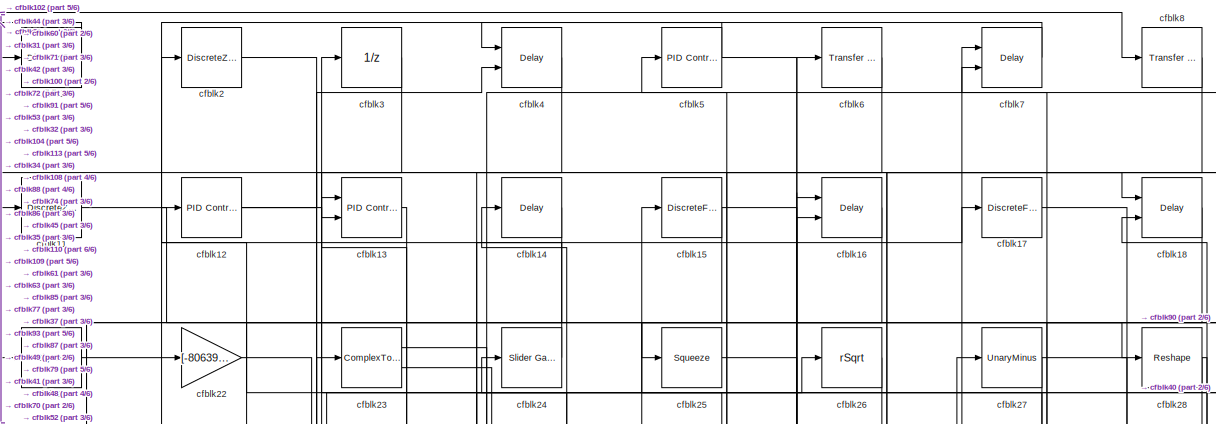
[diagram: root canvas - part 1/6, full width, top band]
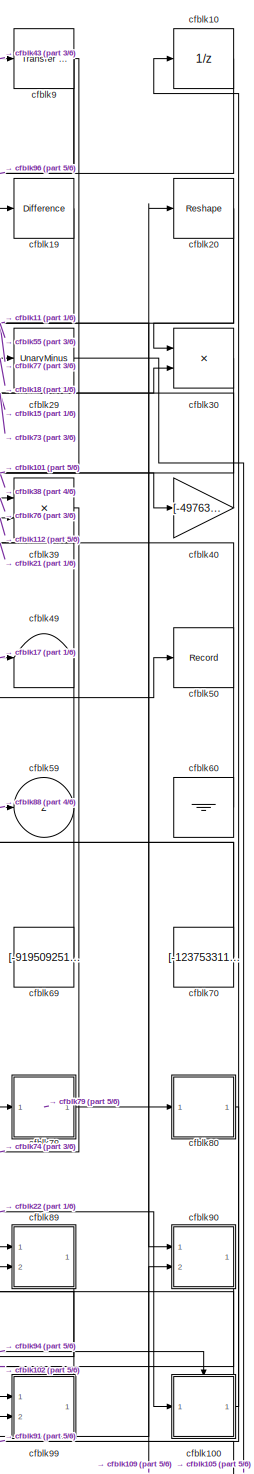
[diagram: root canvas - part 2/6, right side, full height]
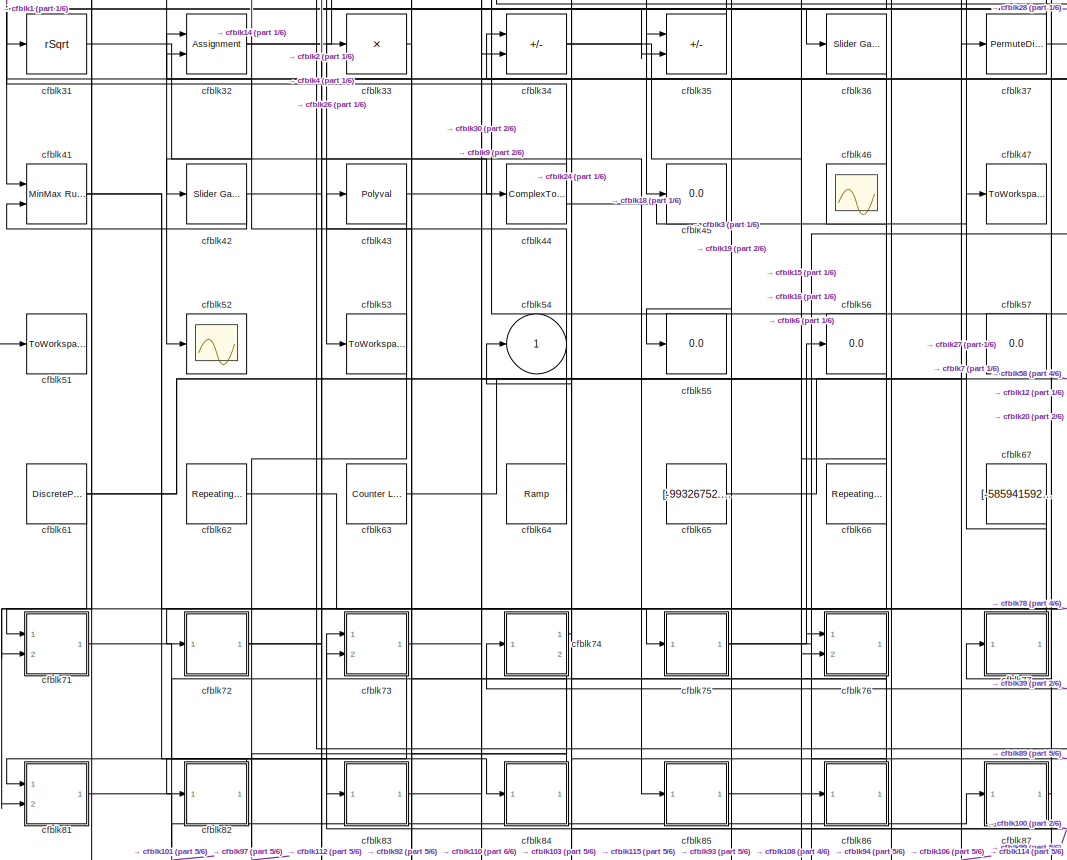
[diagram: root canvas - part 3/6, central region]
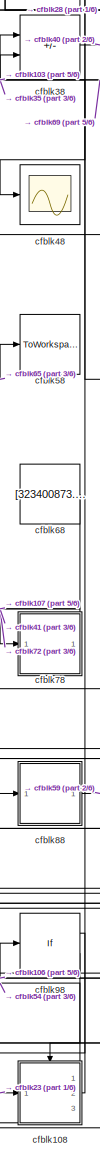
[diagram: root canvas - part 4/6, middle right region]
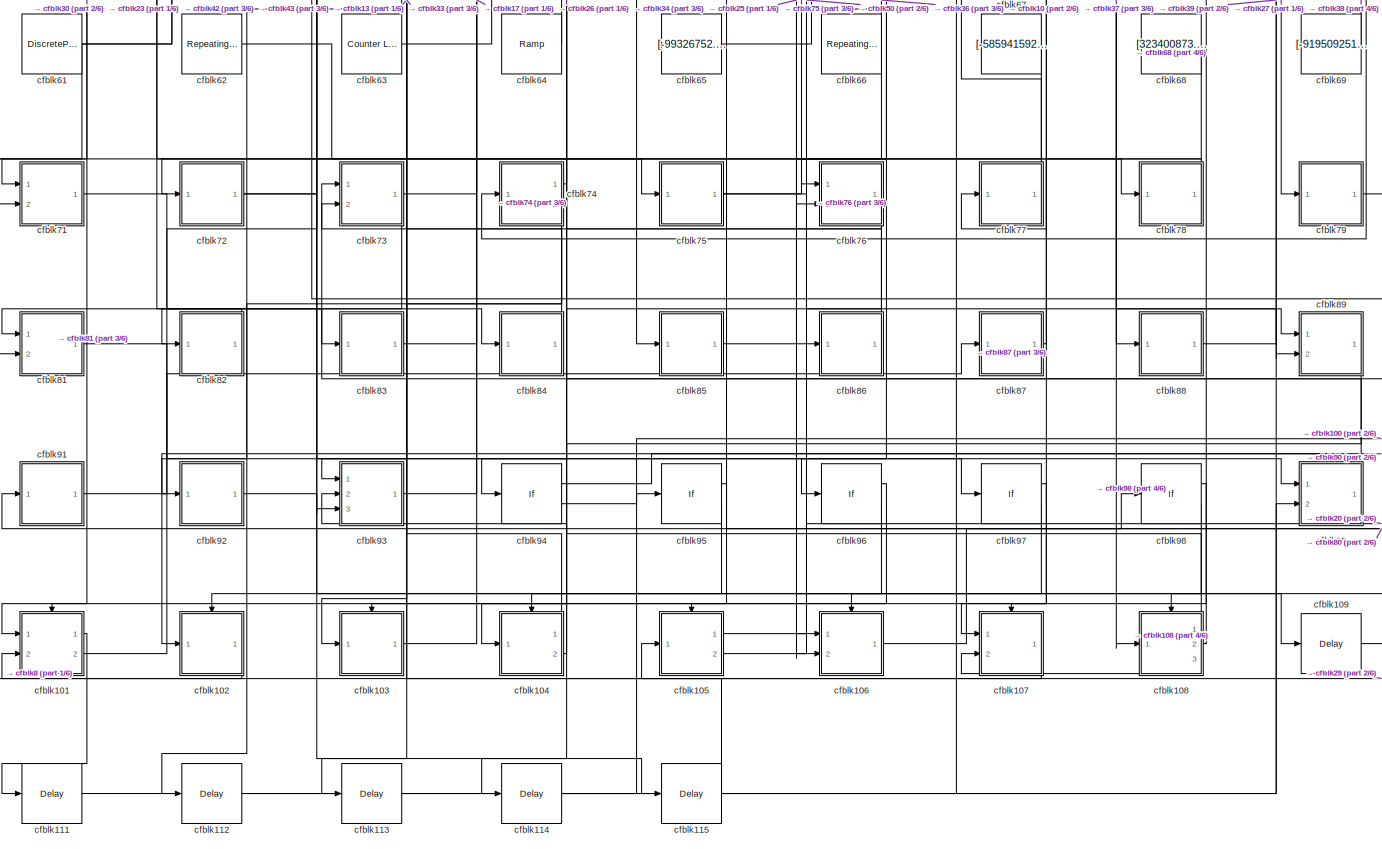
[diagram: root canvas - part 5/6, full width, bottom band]
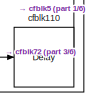
[diagram: root canvas - part 6/6, bottom right region]
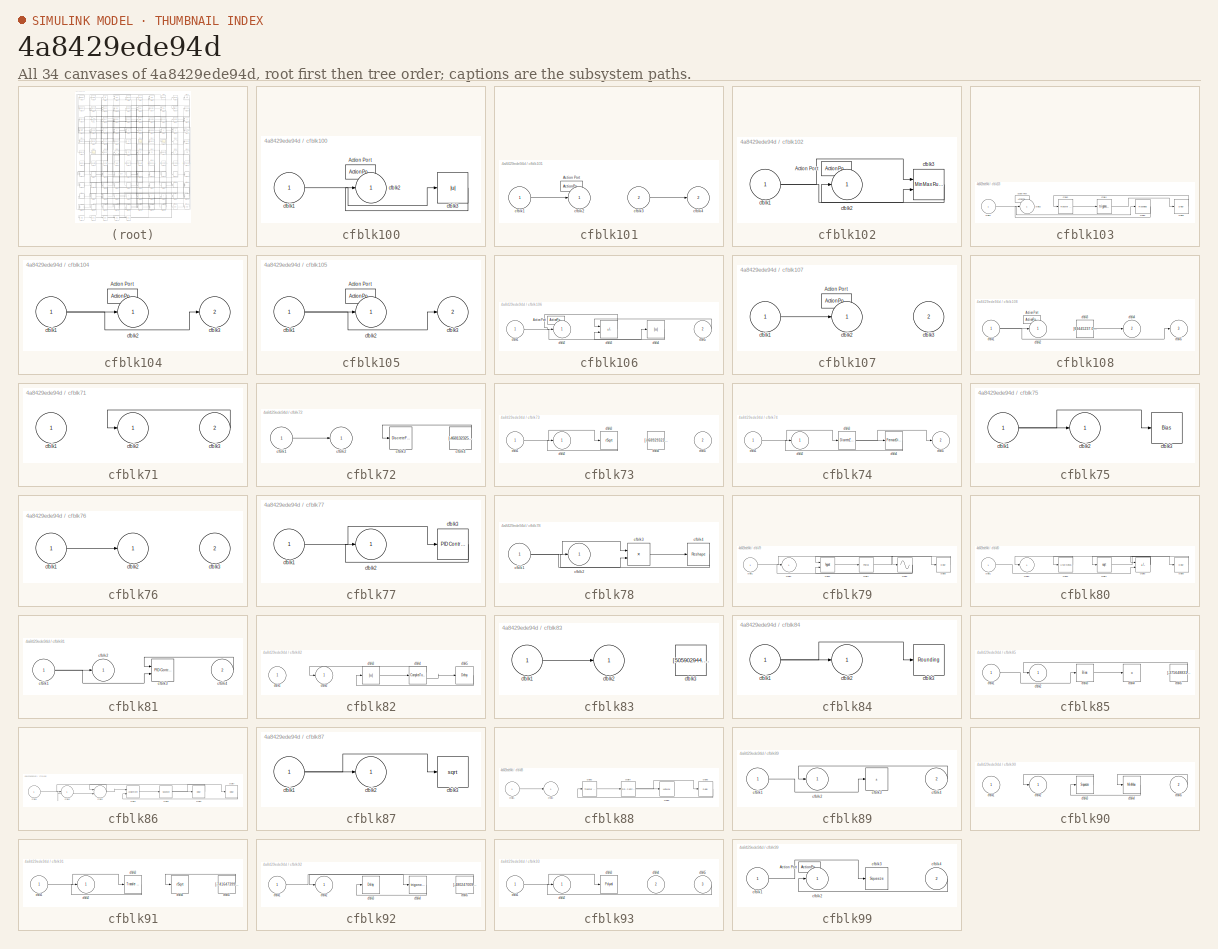
[diagram: thumbnail index - all 34 canvases of the model, root first then tree order]
MODEL slx_4a8429ede94d
KIND model
CONFIG AbsTol = auto
CONFIG EnableMultiTasking = off
CONFIG FixedStep = auto
CONFIG MaxStep = auto
CONFIG MinStep = auto
CONFIG RelTol = 1e-3
CONFIG SampleTimeConstraint = Unconstrained
CONFIG SolverName = VariableStepAuto
CONFIG StartTime = 0.0
CONFIG StopTime = 10.0
BLOCK [DiscreteZeroPole] cfblk1
  Gain = 1
  Poles = [0 0.5]
BLOCK [UnitDelay] cfblk10
  HasFrameUpgradeWarning = on
BLOCK [SubSystem] cfblk100
  Ports = [1, 1, 0, 0, 0, 0, 0, 1]
  RequestExecContextInheritance = off
  TreatAsAtomicUnit = on
BLOCK [ActionPort] cfblk100/Action Port
  ActionPortLabel = else
BLOCK [Inport] cfblk100/cfblk1
BLOCK [Outport] cfblk100/cfblk2
BLOCK [Abs] cfblk100/cfblk3
  SaturateOnIntegerOverflow = off
BLOCK [SubSystem] cfblk101
  Ports = [2, 2, 0, 0, 0, 0, 0, 1]
  RequestExecContextInheritance = off
  TreatAsAtomicUnit = on
BLOCK [ActionPort] cfblk101/Action Port
  ActionPortLabel = if(u1 >= 0)
BLOCK [Inport] cfblk101/cfblk1
BLOCK [Outport] cfblk101/cfblk2
BLOCK [Inport] cfblk101/cfblk3
  Port = 2
BLOCK [Outport] cfblk101/cfblk4
  Port = 2
BLOCK [SubSystem] cfblk102
  Ports = [1, 1, 0, 0, 0, 0, 0, 1]
  RequestExecContextInheritance = off
  TreatAsAtomicUnit = on
BLOCK [ActionPort] cfblk102/Action Port
  ActionPortLabel = else
BLOCK [Inport] cfblk102/cfblk1
BLOCK [Outport] cfblk102/cfblk2
BLOCK [Reference] cfblk102/cfblk3  REF=simulink/Math
Operations/MinMax
Running
Resettable
  Ports = [2, 1]
  SourceBlock = simulink/Math\nOperations/MinMax\nRunning\nResettable
  SourceProductBaseCode = SL
  SourceType = MinMax Running Resettable
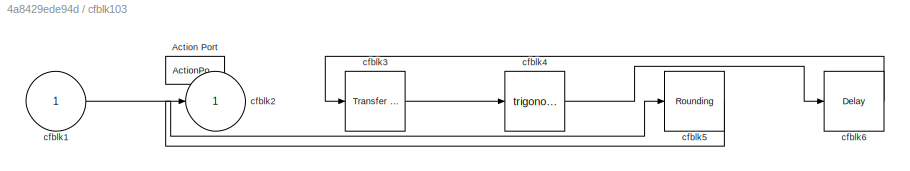
BLOCK [SubSystem] cfblk103
  Ports = [1, 1, 0, 0, 0, 0, 0, 1]
  RequestExecContextInheritance = off
  TreatAsAtomicUnit = on
BLOCK [ActionPort] cfblk103/Action Port
  ActionPortLabel = if(u1 >= 0)
BLOCK [Inport] cfblk103/cfblk1
BLOCK [Outport] cfblk103/cfblk2
BLOCK [Reference] cfblk103/cfblk3  REF=simulink/Discrete/Transfer Fcn
Lead or Lag
  Ports = [1, 1]
  SourceBlock = simulink/Discrete/Transfer Fcn\nLead or Lag
  SourceProductBaseCode = SL
  SourceType = Lead or Lag Compensator
BLOCK [Trigonometry] cfblk103/cfblk4
  Ports = [1, 1]
BLOCK [Rounding] cfblk103/cfblk5
BLOCK [Delay] cfblk103/cfblk6
  InputPortMap = u0
  Ports = [1, 1]
BLOCK [SubSystem] cfblk104
  Ports = [1, 2, 0, 0, 0, 0, 0, 1]
  RequestExecContextInheritance = off
  TreatAsAtomicUnit = on
BLOCK [ActionPort] cfblk104/Action Port
  ActionPortLabel = else
BLOCK [Inport] cfblk104/cfblk1
BLOCK [Outport] cfblk104/cfblk2
BLOCK [Outport] cfblk104/cfblk3
  Port = 2
BLOCK [SubSystem] cfblk105
  Ports = [1, 2, 0, 0, 0, 0, 0, 1]
  RequestExecContextInheritance = off
  TreatAsAtomicUnit = on
BLOCK [ActionPort] cfblk105/Action Port
  ActionPortLabel = if(u1 >= 0)
BLOCK [Inport] cfblk105/cfblk1
BLOCK [Outport] cfblk105/cfblk2
BLOCK [Outport] cfblk105/cfblk3
  Port = 2
BLOCK [SubSystem] cfblk106
  Ports = [2, 1, 0, 0, 0, 0, 0, 1]
  RequestExecContextInheritance = off
  TreatAsAtomicUnit = on
BLOCK [ActionPort] cfblk106/Action Port
  ActionPortLabel = else
BLOCK [Inport] cfblk106/cfblk1
BLOCK [Outport] cfblk106/cfblk2
BLOCK [Sum] cfblk106/cfblk3
  IconShape = rectangular
  Inputs = +-
  Ports = [2, 1]
BLOCK [Abs] cfblk106/cfblk4
  SaturateOnIntegerOverflow = off
BLOCK [Inport] cfblk106/cfblk5
  Port = 2
BLOCK [SubSystem] cfblk107
  Ports = [2, 1, 0, 0, 0, 0, 0, 1]
  RequestExecContextInheritance = off
  TreatAsAtomicUnit = on
BLOCK [ActionPort] cfblk107/Action Port
  ActionPortLabel = if(u1 >= 0)
BLOCK [Inport] cfblk107/cfblk1
BLOCK [Outport] cfblk107/cfblk2
BLOCK [Inport] cfblk107/cfblk3
  Port = 2
BLOCK [SubSystem] cfblk108
  Ports = [1, 3, 0, 0, 0, 0, 0, 1]
  RequestExecContextInheritance = off
  TreatAsAtomicUnit = on
BLOCK [ActionPort] cfblk108/Action Port
  ActionPortLabel = else
BLOCK [Inport] cfblk108/cfblk1
BLOCK [Outport] cfblk108/cfblk2
BLOCK [Constant] cfblk108/cfblk3
  SampleTime = 1
  Value = [69445237.085949]
BLOCK [Outport] cfblk108/cfblk4
  Port = 2
BLOCK [Outport] cfblk108/cfblk5
  Port = 3
BLOCK [Delay] cfblk109
  InputPortMap = u0
  Ports = [1, 1]
  SampleTime = 1
BLOCK [DiscreteZeroPole] cfblk11
  Gain = 1
  Poles = [0 0.5]
BLOCK [Delay] cfblk110
  InputPortMap = u0
  Ports = [1, 1]
  SampleTime = 1
BLOCK [Delay] cfblk111
  InputPortMap = u0
  Ports = [1, 1]
  SampleTime = 1
BLOCK [Delay] cfblk112
  InputPortMap = u0
  Ports = [1, 1]
  SampleTime = 1
BLOCK [Delay] cfblk113
  InputPortMap = u0
  Ports = [1, 1]
  SampleTime = 1
BLOCK [Delay] cfblk114
  InputPortMap = u0
  Ports = [1, 1]
  SampleTime = 1
BLOCK [Delay] cfblk115
  InputPortMap = u0
  Ports = [1, 1]
  SampleTime = 1
BLOCK [Reference] cfblk12  REF=slpidlib/PID Controller
  Ports = [1, 1]
  SourceBlock = slpidlib/PID Controller
  SourceProductBaseCode = SL
  SourceType = PID 1dof
BLOCK [Reference] cfblk13  REF=slpidlib/PID Controller (2DOF)
  Ports = [2, 1]
  SourceBlock = slpidlib/PID Controller (2DOF)
  SourceProductBaseCode = SL
  SourceType = PID 2dof
BLOCK [Delay] cfblk14
  InputPortMap = u0
  Ports = [1, 1]
  SampleTime = 1
BLOCK [DiscreteFir] cfblk15
  InputPortMap = u0
  OutputPortMap = o0
  Ports = [1, 1]
  SampleTime = 1
BLOCK [Delay] cfblk16
  DelayLengthSource = Input port
  InputPortMap = u0,p1
  Ports = [2, 1]
  SampleTime = 1
BLOCK [DiscreteFilter] cfblk17
  InputPortMap = u0
  Ports = [1, 1]
  SampleTime = 1
BLOCK [Delay] cfblk18
  InputPortMap = u0,e6
  Ports = [2, 1]
  SampleTime = 1
  ShowEnablePort = on
BLOCK [Reference] cfblk19  REF=simulink/Discrete/Difference
  Ports = [1, 1]
  SourceBlock = simulink/Discrete/Difference
  SourceProductBaseCode = SL
  SourceType = Difference
BLOCK [DiscreteZeroPole] cfblk2
  Gain = 1
  Poles = [0 0.5]
BLOCK [Reshape] cfblk20
  Ports = [1, 1]
BLOCK [Signum] cfblk21
BLOCK [Gain] cfblk22
  Gain = [-80639239.197323]
BLOCK [ComplexToMagnitudeAngle] cfblk23
  Ports = [1, 2]
BLOCK [Reference] cfblk24  REF=simulink/Math
Operations/Slider
Gain
  Ports = [1, 1]
  SourceBlock = simulink/Math\nOperations/Slider\nGain
  SourceProductBaseCode = SL
  SourceType = Slider Gain
BLOCK [Squeeze] cfblk25
BLOCK [Sqrt] cfblk26
  AlgorithmType = Newton-Raphson
  Operator = rSqrt
BLOCK [UnaryMinus] cfblk27
BLOCK [Reshape] cfblk28
  Ports = [1, 1]
BLOCK [UnaryMinus] cfblk29
BLOCK [UnitDelay] cfblk3
  HasFrameUpgradeWarning = on
BLOCK [Product] cfblk30
  Inputs = **
  Ports = [2, 1]
BLOCK [Sqrt] cfblk31
  AlgorithmType = Newton-Raphson
  Operator = rSqrt
BLOCK [Assignment] cfblk32
  DiagnosticForDimensions = Warning
  IndexOptions = Index vector (dialog)
  Indices = 1
  OutputSizes = 1
  Ports = [2, 1]
BLOCK [Product] cfblk33
  Inputs = *
  Ports = [1, 1]
BLOCK [Sum] cfblk34
  IconShape = rectangular
  Inputs = +-
  Ports = [2, 1]
BLOCK [Sum] cfblk35
  IconShape = rectangular
  Inputs = -+
  Ports = [2, 1]
BLOCK [Reference] cfblk36  REF=simulink/Math
Operations/Slider
Gain
  Ports = [1, 1]
  SourceBlock = simulink/Math\nOperations/Slider\nGain
  SourceProductBaseCode = SL
  SourceType = Slider Gain
BLOCK [PermuteDimensions] cfblk37
BLOCK [Sum] cfblk38
  IconShape = rectangular
  Inputs = +-
  Ports = [2, 1]
BLOCK [Product] cfblk39
  Ports = [2, 1]
BLOCK [Delay] cfblk4
  DelayLengthSource = Input port
  InputPortMap = u0,p1
  Ports = [2, 1]
  SampleTime = 1
BLOCK [Gain] cfblk40
  Gain = [-497638596.073755]
BLOCK [Reference] cfblk41  REF=simulink/Math
Operations/MinMax
Running
Resettable
  Ports = [2, 1]
  SourceBlock = simulink/Math\nOperations/MinMax\nRunning\nResettable
  SourceProductBaseCode = SL
  SourceType = MinMax Running Resettable
BLOCK [Reference] cfblk42  REF=simulink/Math
Operations/Slider
Gain
  Ports = [1, 1]
  SourceBlock = simulink/Math\nOperations/Slider\nGain
  SourceProductBaseCode = SL
  SourceType = Slider Gain
BLOCK [Polyval] cfblk43
  Coefs = [ +2.081618890e-019, -1.441693666e-014, +4.719686976e-010, -8.536869453e-006, +1.621573104e-001, -8.087801117e+001 ]
BLOCK [ComplexToMagnitudeAngle] cfblk44
  Ports = [1, 2]
BLOCK [Display] cfblk45
  Decimation = 1
  Ports = [1]
BLOCK [Scope] cfblk46
  Floating = on
  NumInputPorts = 1
  Ports = []
BLOCK [ToWorkspace] cfblk47
  FixptAsFi = on
  MaxDataPoints = inf
  Ports = [1]
  SampleTime = -1
  SaveFormat = Timeseries
  VariableName = yrtvbks
BLOCK [Scope] cfblk48
  Floating = off
  NumInputPorts = 1
  Ports = [1]
BLOCK [Terminator] cfblk49
BLOCK [Reference] cfblk5  REF=slpidlib/PID Controller
  Ports = [1, 1]
  SourceBlock = slpidlib/PID Controller
  SourceProductBaseCode = SL
  SourceType = PID 1dof
BLOCK [Record] cfblk50
  FileSettingsInternal = {"entries":[{"content":{"excelSettings":{"content":{},"type":"Streamout.ExcelSettings"}},"type":"Streamout.FileSettingStorage","uuid":"4f346b97-7341-4045-91f1-61345f62b1a6"}],"packageUris":["http://schema.mathworks.com/mf0/streamout_blocks/R2020a"],"version":"1.0"}
  Ports = [1]
  SignalsInternal = {"entries":[{"content":{"signals":[{"content":{"blockPath":["sampleModel20/cfblk50"],"channel":[],"dimensions":[1],"domain":"sampleModel20/cfblk50","lineColor":"#fe330a","plots":[1],"port":1,"sid":[""],"signalID":823,"signalName":"cfblk105:1"},"type":"RecordBlkView.Signal","uuid":"0bcd1c83-95c0-4258-b79c-26463c7fbc3e"}]},"type":"RecordBlkView.InputSignals","uuid":"2078f50c-ec79-496c-a794-067d6fc6b...<+97ch>
  VisualizationBindings = {"sparklinesplugin":{"info":[{"bindingParametersList":[],"subplotID":1}]}}
BLOCK [ToWorkspace] cfblk51
  FixptAsFi = on
  MaxDataPoints = inf
  Ports = [1]
  SampleTime = -1
  SaveFormat = Timeseries
  VariableName = dqgvvlk
BLOCK [Scope] cfblk52
  Floating = off
  NumInputPorts = 1
  Ports = [1]
BLOCK [ToWorkspace] cfblk53
  FixptAsFi = on
  MaxDataPoints = inf
  Ports = [1]
  SampleTime = -1
  SaveFormat = Timeseries
  VariableName = zakmqbd
BLOCK [Outport] cfblk54
BLOCK [Display] cfblk55
  Decimation = 1
  Ports = [1]
BLOCK [Display] cfblk56
  Decimation = 1
  Ports = [1]
BLOCK [Display] cfblk57
  Decimation = 1
  Ports = [1]
BLOCK [ToWorkspace] cfblk58
  FixptAsFi = on
  MaxDataPoints = inf
  Ports = [1]
  SampleTime = -1
  SaveFormat = Timeseries
  VariableName = rfdbenw
BLOCK [Outport] cfblk59
  Port = 2
BLOCK [Reference] cfblk6  REF=simulink/Discrete/Transfer Fcn
Lead or Lag
  Ports = [1, 1]
  SourceBlock = simulink/Discrete/Transfer Fcn\nLead or Lag
  SourceProductBaseCode = SL
  SourceType = Lead or Lag Compensator
BLOCK [Ground] cfblk60
BLOCK [DiscretePulseGenerator] cfblk61
  Amplitude = [532521476.362153]
  Period = [13495093.294940]
  PhaseDelay = [1.000000]
  Ports = [0, 1]
  PulseType = Time based
  PulseWidth = 5
BLOCK [Reference] cfblk62  REF=simulink/Sources/Repeating
Sequence
  Ports = [0, 1]
  SourceBlock = simulink/Sources/Repeating\nSequence
  SourceProductBaseCode = SL
  SourceType = Repeating table
BLOCK [Reference] cfblk63  REF=simulink/Sources/Counter
Limited
  Ports = [0, 1]
  SourceBlock = simulink/Sources/Counter\nLimited
  SourceProductBaseCode = SL
  SourceType = Counter Limited
BLOCK [Reference] cfblk64  REF=simulink/Sources/Ramp
  Ports = [0, 1]
  SourceBlock = simulink/Sources/Ramp
  SourceProductBaseCode = SL
  SourceType = Ramp
BLOCK [Constant] cfblk65
  SampleTime = 1
  Value = [-99326752.051702]
BLOCK [Reference] cfblk66  REF=simulink/Sources/Repeating
Sequence
  Ports = [0, 1]
  SourceBlock = simulink/Sources/Repeating\nSequence
  SourceProductBaseCode = SL
  SourceType = Repeating table
BLOCK [Constant] cfblk67
  SampleTime = 1
  Value = [-585941592.143765]
BLOCK [Constant] cfblk68
  SampleTime = 1
  Value = [323400873.829869]
BLOCK [Constant] cfblk69
  SampleTime = 1
  Value = [-919509251.470085]
BLOCK [Delay] cfblk7
  DelayLengthSource = Input port
  InputPortMap = u0,p1
  Ports = [2, 1]
  SampleTime = 1
BLOCK [Constant] cfblk70
  SampleTime = 1
  Value = [-123753311.655536]
BLOCK [SubSystem] cfblk71
  Ports = [2, 1]
  RequestExecContextInheritance = off
BLOCK [Inport] cfblk71/cfblk1
BLOCK [Outport] cfblk71/cfblk2
BLOCK [Inport] cfblk71/cfblk3
  Port = 2
BLOCK [SubSystem] cfblk72
  Ports = [1, 1]
  RequestExecContextInheritance = off
BLOCK [Inport] cfblk72/cfblk1
BLOCK [Outport] cfblk72/cfblk2
BLOCK [DiscreteFilter] cfblk72/cfblk3
  InputPortMap = u0
  Ports = [1, 1]
  SampleTime = 1
BLOCK [Constant] cfblk72/cfblk4
  SampleTime = 1
  Value = [-468132325.571704]
BLOCK [SubSystem] cfblk73
  Ports = [2, 1]
  RequestExecContextInheritance = off
BLOCK [Inport] cfblk73/cfblk1
BLOCK [Outport] cfblk73/cfblk2
BLOCK [Sqrt] cfblk73/cfblk3
  AlgorithmType = Newton-Raphson
  Operator = rSqrt
BLOCK [Constant] cfblk73/cfblk4
  SampleTime = 1
  Value = [-868929323.791552]
BLOCK [Inport] cfblk73/cfblk5
  Port = 2
BLOCK [SubSystem] cfblk74
  Ports = [1, 2]
  RequestExecContextInheritance = off
BLOCK [Inport] cfblk74/cfblk1
BLOCK [Outport] cfblk74/cfblk2
BLOCK [DiscreteZeroPole] cfblk74/cfblk3
  Gain = 1
  Poles = [0 0.5]
BLOCK [PermuteDimensions] cfblk74/cfblk4
BLOCK [Outport] cfblk74/cfblk5
  Port = 2
BLOCK [SubSystem] cfblk75
  Ports = [1, 1]
  RequestExecContextInheritance = off
BLOCK [Inport] cfblk75/cfblk1
BLOCK [Outport] cfblk75/cfblk2
BLOCK [Bias] cfblk75/cfblk3
  Bias = [-666905062.616812]
  SaturateOnIntegerOverflow = off
BLOCK [SubSystem] cfblk76
  Ports = [2, 1]
  RequestExecContextInheritance = off
BLOCK [Inport] cfblk76/cfblk1
BLOCK [Outport] cfblk76/cfblk2
BLOCK [Inport] cfblk76/cfblk3
  Port = 2
BLOCK [SubSystem] cfblk77
  Ports = [1, 1]
  RequestExecContextInheritance = off
BLOCK [Inport] cfblk77/cfblk1
BLOCK [Outport] cfblk77/cfblk2
BLOCK [Reference] cfblk77/cfblk3  REF=slpidlib/PID Controller
  Ports = [1, 1]
  SourceBlock = slpidlib/PID Controller
  SourceProductBaseCode = SL
  SourceType = PID 1dof
BLOCK [SubSystem] cfblk78
  Ports = [1, 1]
  RequestExecContextInheritance = off
BLOCK [Inport] cfblk78/cfblk1
BLOCK [Outport] cfblk78/cfblk2
BLOCK [Product] cfblk78/cfblk3
  Ports = [2, 1]
BLOCK [Reshape] cfblk78/cfblk4
  Ports = [1, 1]
BLOCK [SubSystem] cfblk79
  Ports = [1, 1]
  RequestExecContextInheritance = off
BLOCK [Inport] cfblk79/cfblk1
BLOCK [Outport] cfblk79/cfblk2
BLOCK [Math] cfblk79/cfblk3
  Operator = hypot
  Ports = [2, 1]
BLOCK [Polyval] cfblk79/cfblk4
  Coefs = [ +2.081618890e-019, -1.441693666e-014, +4.719686976e-010, -8.536869453e-006, +1.621573104e-001, -8.087801117e+001 ]
BLOCK [Sin] cfblk79/cfblk5
  Ports = [1, 1]
  SampleTime = 0
  TimeSource = Use external signal
BLOCK [Delay] cfblk79/cfblk6
  InputPortMap = u0
  Ports = [1, 1]
  SampleTime = 1
BLOCK [Reference] cfblk8  REF=simulink/Discrete/Transfer Fcn
Real Zero
  Ports = [1, 1]
  SourceBlock = simulink/Discrete/Transfer Fcn\nReal Zero
  SourceProductBaseCode = SL
  SourceType = Transfer Fcn Real Zero
BLOCK [SubSystem] cfblk80
  Ports = [1, 1]
  RequestExecContextInheritance = off
BLOCK [Inport] cfblk80/cfblk1
BLOCK [Outport] cfblk80/cfblk2
BLOCK [UnaryMinus] cfblk80/cfblk3
BLOCK [Sqrt] cfblk80/cfblk4
BLOCK [Sum] cfblk80/cfblk5
  IconShape = rectangular
  Inputs = -+
  Ports = [2, 1]
BLOCK [Delay] cfblk80/cfblk6
  InputPortMap = u0
  Ports = [1, 1]
  SampleTime = 1
BLOCK [SubSystem] cfblk81
  Ports = [2, 1]
  RequestExecContextInheritance = off
BLOCK [Inport] cfblk81/cfblk1
BLOCK [Outport] cfblk81/cfblk2
BLOCK [Reference] cfblk81/cfblk3  REF=slpidlib/PID Controller (2DOF)
  Ports = [2, 1]
  SourceBlock = slpidlib/PID Controller (2DOF)
  SourceProductBaseCode = SL
  SourceType = PID 2dof
BLOCK [Inport] cfblk81/cfblk4
  Port = 2
BLOCK [SubSystem] cfblk82
  Ports = [1, 1]
  RequestExecContextInheritance = off
BLOCK [Inport] cfblk82/cfblk1
BLOCK [Outport] cfblk82/cfblk2
BLOCK [Abs] cfblk82/cfblk3
  SaturateOnIntegerOverflow = off
BLOCK [ComplexToRealImag] cfblk82/cfblk4
  Ports = [1, 2]
BLOCK [Delay] cfblk82/cfblk5
  InputPortMap = u0
  Ports = [1, 1]
  SampleTime = 1
BLOCK [SubSystem] cfblk83
  Ports = [1, 1]
  RequestExecContextInheritance = off
BLOCK [Inport] cfblk83/cfblk1
BLOCK [Outport] cfblk83/cfblk2
BLOCK [Constant] cfblk83/cfblk3
  SampleTime = 1
  Value = [505902944.371791]
BLOCK [SubSystem] cfblk84
  Ports = [1, 1]
  RequestExecContextInheritance = off
BLOCK [Inport] cfblk84/cfblk1
BLOCK [Outport] cfblk84/cfblk2
BLOCK [Rounding] cfblk84/cfblk3
BLOCK [SubSystem] cfblk85
  Ports = [1, 1]
  RequestExecContextInheritance = off
BLOCK [Inport] cfblk85/cfblk1
BLOCK [Outport] cfblk85/cfblk2
BLOCK [Bias] cfblk85/cfblk3
  Bias = [-562196468.330570]
  SaturateOnIntegerOverflow = off
BLOCK [Product] cfblk85/cfblk4
  Inputs = *
  Ports = [1, 1]
BLOCK [Constant] cfblk85/cfblk5
  SampleTime = 1
  Value = [-375648831.580057]
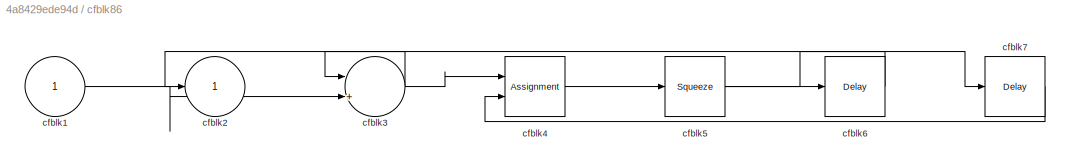
BLOCK [SubSystem] cfblk86
  Ports = [1, 1]
  RequestExecContextInheritance = off
BLOCK [Inport] cfblk86/cfblk1
BLOCK [Outport] cfblk86/cfblk2
BLOCK [Sum] cfblk86/cfblk3
  Inputs = |++
  Ports = [2, 1]
BLOCK [Assignment] cfblk86/cfblk4
  DiagnosticForDimensions = Warning
  IndexOptions = Index vector (dialog)
  Indices = 1
  OutputSizes = 1
  Ports = [2, 1]
BLOCK [Squeeze] cfblk86/cfblk5
BLOCK [Delay] cfblk86/cfblk6
  InputPortMap = u0
  Ports = [1, 1]
  SampleTime = 1
BLOCK [Delay] cfblk86/cfblk7
  InputPortMap = u0
  Ports = [1, 1]
  SampleTime = 1
BLOCK [SubSystem] cfblk87
  Ports = [1, 1]
  RequestExecContextInheritance = off
BLOCK [Inport] cfblk87/cfblk1
BLOCK [Outport] cfblk87/cfblk2
BLOCK [Sqrt] cfblk87/cfblk3
BLOCK [SubSystem] cfblk88
  Ports = [1, 1]
  RequestExecContextInheritance = off
BLOCK [Inport] cfblk88/cfblk1
BLOCK [Outport] cfblk88/cfblk2
BLOCK [Reference] cfblk88/cfblk3  REF=simulink/Discrete/Transfer Fcn
Lead or Lag
  Ports = [1, 1]
  SourceBlock = simulink/Discrete/Transfer Fcn\nLead or Lag
  SourceProductBaseCode = SL
  SourceType = Lead or Lag Compensator
BLOCK [Reference] cfblk88/cfblk4  REF=slpidlib/PID Controller
  Ports = [1, 1]
  SourceBlock = slpidlib/PID Controller
  SourceProductBaseCode = SL
  SourceType = PID 1dof
BLOCK [MinMax] cfblk88/cfblk5
  Function = max
  Ports = [1, 1]
BLOCK [Delay] cfblk88/cfblk6
  InputPortMap = u0
  Ports = [1, 1]
  SampleTime = 1
BLOCK [SubSystem] cfblk89
  Ports = [2, 1]
  RequestExecContextInheritance = off
BLOCK [Inport] cfblk89/cfblk1
BLOCK [Outport] cfblk89/cfblk2
BLOCK [Sum] cfblk89/cfblk3
  IconShape = rectangular
  Inputs = +
  Ports = [1, 1]
BLOCK [Inport] cfblk89/cfblk4
  Port = 2
BLOCK [Reference] cfblk9  REF=simulink/Discrete/Transfer Fcn
Lead or Lag
  Ports = [1, 1]
  SourceBlock = simulink/Discrete/Transfer Fcn\nLead or Lag
  SourceProductBaseCode = SL
  SourceType = Lead or Lag Compensator
BLOCK [SubSystem] cfblk90
  Ports = [2, 1]
  RequestExecContextInheritance = off
BLOCK [Inport] cfblk90/cfblk1
BLOCK [Outport] cfblk90/cfblk2
BLOCK [Squeeze] cfblk90/cfblk3
BLOCK [MinMax] cfblk90/cfblk4
  Ports = [1, 1]
BLOCK [Inport] cfblk90/cfblk5
  Port = 2
BLOCK [SubSystem] cfblk91
  Ports = [1, 1]
  RequestExecContextInheritance = off
BLOCK [Inport] cfblk91/cfblk1
BLOCK [Outport] cfblk91/cfblk2
BLOCK [Reference] cfblk91/cfblk3  REF=simulink/Discrete/Transfer Fcn
Real Zero
  Ports = [1, 1]
  SourceBlock = simulink/Discrete/Transfer Fcn\nReal Zero
  SourceProductBaseCode = SL
  SourceType = Transfer Fcn Real Zero
BLOCK [Sqrt] cfblk91/cfblk4
  AlgorithmType = Newton-Raphson
  Operator = rSqrt
BLOCK [Constant] cfblk91/cfblk5
  SampleTime = 1
  Value = [-741647399.193095]
BLOCK [SubSystem] cfblk92
  Ports = [1, 1]
  RequestExecContextInheritance = off
BLOCK [Inport] cfblk92/cfblk1
BLOCK [Outport] cfblk92/cfblk2
BLOCK [Delay] cfblk92/cfblk3
  InputPortMap = u0
  Ports = [1, 1]
  SampleTime = 1
BLOCK [Trigonometry] cfblk92/cfblk4
  Ports = [1, 1]
BLOCK [Constant] cfblk92/cfblk5
  SampleTime = 1
  Value = [-480247009.056526]
BLOCK [SubSystem] cfblk93
  Ports = [3, 1]
  RequestExecContextInheritance = off
BLOCK [Inport] cfblk93/cfblk1
BLOCK [Outport] cfblk93/cfblk2
BLOCK [Polyval] cfblk93/cfblk3
  Coefs = [ +2.081618890e-019, -1.441693666e-014, +4.719686976e-010, -8.536869453e-006, +1.621573104e-001, -8.087801117e+001 ]
BLOCK [Inport] cfblk93/cfblk4
  Port = 2
BLOCK [Inport] cfblk93/cfblk5
  Port = 3
BLOCK [If] cfblk94
  IfExpression = u1 >= 0
  Ports = [1, 2]
  SampleTime = 1
BLOCK [If] cfblk95
  IfExpression = u1 >= 0
  Ports = [1, 2]
  SampleTime = 1
BLOCK [If] cfblk96
  IfExpression = u1 >= 0
  Ports = [1, 2]
  SampleTime = 1
BLOCK [If] cfblk97
  IfExpression = u1 >= 0
  Ports = [1, 2]
  SampleTime = 1
BLOCK [If] cfblk98
  IfExpression = u1 >= 0
  Ports = [1, 2]
  SampleTime = 1
BLOCK [SubSystem] cfblk99
  Ports = [2, 1, 0, 0, 0, 0, 0, 1]
  RequestExecContextInheritance = off
  TreatAsAtomicUnit = on
BLOCK [ActionPort] cfblk99/Action Port
  ActionPortLabel = if(u1 >= 0)
BLOCK [Inport] cfblk99/cfblk1
BLOCK [Outport] cfblk99/cfblk2
BLOCK [Squeeze] cfblk99/cfblk3
BLOCK [Inport] cfblk99/cfblk4
  Port = 2
LINE cfblk100/cfblk1:1 -> cfblk100/cfblk3:1
LINE cfblk100/cfblk3:1 -> cfblk100/cfblk2:1
NET cfblk100:1 -> cfblk10:1, cfblk73:1
LINE cfblk101/cfblk1:1 -> cfblk101/cfblk2:1
LINE cfblk101/cfblk3:1 -> cfblk101/cfblk4:1
LINE cfblk101:1 -> cfblk111:1
LINE cfblk101:2 -> cfblk87:1
NET cfblk102/cfblk1:1 -> cfblk102/cfblk3:1, cfblk102/cfblk3:2
LINE cfblk102/cfblk3:1 -> cfblk102/cfblk2:1
LINE cfblk102:1 -> cfblk8:1
LINE cfblk103/cfblk1:1 -> cfblk103/cfblk5:1
LINE cfblk103/cfblk3:1 -> cfblk103/cfblk4:1
LINE cfblk103/cfblk4:1 -> cfblk103/cfblk6:1
LINE cfblk103/cfblk5:1 -> cfblk103/cfblk2:1
LINE cfblk103/cfblk6:1 -> cfblk103/cfblk3:1
LINE cfblk103:1 -> cfblk38:2
NET cfblk104/cfblk1:1 -> cfblk104/cfblk2:1, cfblk104/cfblk3:1
LINE cfblk104:1 -> cfblk13:1
LINE cfblk104:2 -> cfblk93:2
NET cfblk105/cfblk1:1 -> cfblk105/cfblk2:1, cfblk105/cfblk3:1
LINE cfblk105:1 -> cfblk50:1
LINE cfblk105:2 -> cfblk20:1
LINE cfblk106/cfblk1:1 -> cfblk106/cfblk4:1
LINE cfblk106/cfblk3:1 -> cfblk106/cfblk2:1
LINE cfblk106/cfblk4:1 -> cfblk106/cfblk3:2
LINE cfblk106/cfblk5:1 -> cfblk106/cfblk3:1
LINE cfblk106:1 -> cfblk98:1
LINE cfblk107/cfblk1:1 -> cfblk107/cfblk2:1
LINE cfblk107:1 -> cfblk101:2
NET cfblk108/cfblk1:1 -> cfblk108/cfblk2:1, cfblk108/cfblk5:1
LINE cfblk108/cfblk3:1 -> cfblk108/cfblk4:1
LINE cfblk108:1 -> cfblk54:1
LINE cfblk108:2 -> cfblk35:1
LINE cfblk108:3 -> cfblk107:2
LINE cfblk109:1 -> cfblk90:2
LINE cfblk10:1 -> cfblk96:1
LINE cfblk110:1 -> cfblk5:1
LINE cfblk111:1 -> cfblk95:1
LINE cfblk112:1 -> cfblk39:2
LINE cfblk113:1 -> cfblk99:2
LINE cfblk114:1 -> cfblk37:1
LINE cfblk115:1 -> cfblk43:1
LINE cfblk11:1 -> cfblk90:1
NET cfblk12:1 -> cfblk13:2, cfblk18:1
LINE cfblk13:1 -> cfblk113:1
LINE cfblk14:1 -> cfblk42:1
NET cfblk15:1 -> cfblk31:1, cfblk86:1
LINE cfblk16:1 -> cfblk71:1
LINE cfblk17:1 -> cfblk49:1
LINE cfblk18:1 -> cfblk45:1
LINE cfblk19:1 -> cfblk55:1
LINE cfblk1:1 -> cfblk51:1
NET cfblk20:1 -> cfblk30:1, cfblk77:1
LINE cfblk21:1 -> cfblk22:1
LINE cfblk22:1 -> cfblk100:1
LINE cfblk23:1 -> cfblk108:1
LINE cfblk23:2 -> cfblk88:1
LINE cfblk24:1 -> cfblk2:1
LINE cfblk25:1 -> cfblk109:1
LINE cfblk26:1 -> cfblk104:1
NET cfblk27:1 -> cfblk79:1, cfblk93:3
NET cfblk28:1 -> cfblk41:1, cfblk48:1
LINE cfblk29:1 -> cfblk105:1
LINE cfblk2:1 -> cfblk35:2
LINE cfblk30:1 -> cfblk101:1
LINE cfblk31:1 -> cfblk85:1
NET cfblk32:1 -> cfblk26:1, cfblk44:1
LINE cfblk33:1 -> cfblk93:1
NET cfblk34:1 -> cfblk106:1, cfblk36:1
LINE cfblk35:1 -> cfblk3:1
LINE cfblk36:1 -> cfblk106:2
NET cfblk37:1 -> cfblk12:1, cfblk89:1
LINE cfblk38:1 -> cfblk40:1
LINE cfblk39:1 -> cfblk74:1
LINE cfblk3:1 -> cfblk53:1
LINE cfblk40:1 -> cfblk15:1
NET cfblk41:1 -> cfblk78:1, cfblk83:1
NET cfblk42:1 -> cfblk41:2, cfblk99:1
NET cfblk43:1 -> cfblk92:1, cfblk9:1
LINE cfblk44:1 -> cfblk1:1
LINE cfblk44:2 -> cfblk47:1
LINE cfblk4:1 -> cfblk11:1
NET cfblk5:1 -> cfblk28:1, cfblk4:1
LINE cfblk60:1 -> cfblk21:1
NET cfblk61:1 -> cfblk27:1, cfblk6:1, cfblk71:2
LINE cfblk62:1 -> cfblk75:1
LINE cfblk63:1 -> cfblk16:2
LINE cfblk64:1 -> cfblk32:2
LINE cfblk65:1 -> cfblk58:1
NET cfblk66:1 -> cfblk32:1, cfblk76:2
LINE cfblk67:1 -> cfblk81:2
LINE cfblk68:1 -> cfblk107:1
LINE cfblk69:1 -> cfblk38:1
LINE cfblk6:1 -> cfblk34:2
NET cfblk70:1 -> cfblk18:2, cfblk29:1
LINE cfblk71/cfblk3:1 -> cfblk71/cfblk2:1
LINE cfblk71:1 -> cfblk84:1
LINE cfblk72/cfblk1:1 -> cfblk72/cfblk2:1
LINE cfblk72/cfblk4:1 -> cfblk72/cfblk3:1
NET cfblk72:1 -> cfblk110:1, cfblk4:2
LINE cfblk73/cfblk1:1 -> cfblk73/cfblk3:1
LINE cfblk73/cfblk3:1 -> cfblk73/cfblk2:1
NET cfblk73:1 -> cfblk30:2, cfblk82:1
LINE cfblk74/cfblk1:1 -> cfblk74/cfblk3:1
NET cfblk74/cfblk3:1 -> cfblk74/cfblk4:1, cfblk74/cfblk5:1
LINE cfblk74/cfblk4:1 -> cfblk74/cfblk2:1
LINE cfblk74:1 -> cfblk14:1
NET cfblk74:2 -> cfblk103:1, cfblk112:1
NET cfblk75/cfblk1:1 -> cfblk75/cfblk2:1, cfblk75/cfblk3:1
NET cfblk75:1 -> cfblk56:1, cfblk89:2
LINE cfblk76/cfblk1:1 -> cfblk76/cfblk2:1
NET cfblk76:1 -> cfblk73:2, cfblk94:1
LINE cfblk77/cfblk1:1 -> cfblk77/cfblk3:1
LINE cfblk77/cfblk3:1 -> cfblk77/cfblk2:1
LINE cfblk77:1 -> cfblk7:1
NET cfblk78/cfblk1:1 -> cfblk78/cfblk3:1, cfblk78/cfblk3:2
LINE cfblk78/cfblk3:1 -> cfblk78/cfblk4:1
LINE cfblk78/cfblk4:1 -> cfblk78/cfblk2:1
LINE cfblk78:1 -> cfblk72:1
LINE cfblk79/cfblk1:1 -> cfblk79/cfblk5:1
LINE cfblk79/cfblk3:1 -> cfblk79/cfblk4:1
LINE cfblk79/cfblk4:1 -> cfblk79/cfblk6:1
NET cfblk79/cfblk5:1 -> cfblk79/cfblk2:1, cfblk79/cfblk3:2
LINE cfblk79/cfblk6:1 -> cfblk79/cfblk3:1
LINE cfblk79:1 -> cfblk80:1
LINE cfblk7:1 -> cfblk52:1
LINE cfblk80/cfblk1:1 -> cfblk80/cfblk5:2
LINE cfblk80/cfblk3:1 -> cfblk80/cfblk2:1
LINE cfblk80/cfblk4:1 -> cfblk80/cfblk6:1
NET cfblk80/cfblk5:1 -> cfblk80/cfblk3:1, cfblk80/cfblk4:1
LINE cfblk80/cfblk6:1 -> cfblk80/cfblk5:1
LINE cfblk80:1 -> cfblk91:1
NET cfblk81/cfblk1:1 -> cfblk81/cfblk2:1, cfblk81/cfblk3:2
LINE cfblk81/cfblk4:1 -> cfblk81/cfblk3:1
LINE cfblk81:1 -> cfblk97:1
LINE cfblk82/cfblk3:1 -> cfblk82/cfblk4:1
LINE cfblk82/cfblk4:1 -> cfblk82/cfblk2:1
LINE cfblk82/cfblk4:2 -> cfblk82/cfblk5:1
LINE cfblk82/cfblk5:1 -> cfblk82/cfblk3:1
LINE cfblk82:1 -> cfblk81:1
LINE cfblk83/cfblk1:1 -> cfblk83/cfblk2:1
LINE cfblk83:1 -> cfblk57:1
NET cfblk84/cfblk1:1 -> cfblk84/cfblk2:1, cfblk84/cfblk3:1
LINE cfblk84:1 -> cfblk33:1
LINE cfblk85/cfblk1:1 -> cfblk85/cfblk3:1
LINE cfblk85/cfblk3:1 -> cfblk85/cfblk4:1
LINE cfblk85/cfblk5:1 -> cfblk85/cfblk2:1
LINE cfblk85:1 -> cfblk16:1
LINE cfblk86/cfblk1:1 -> cfblk86/cfblk3:2
NET cfblk86/cfblk3:1 -> cfblk86/cfblk2:1, cfblk86/cfblk4:1
LINE cfblk86/cfblk4:1 -> cfblk86/cfblk5:1
NET cfblk86/cfblk5:1 -> cfblk86/cfblk6:1, cfblk86/cfblk7:1
LINE cfblk86/cfblk6:1 -> cfblk86/cfblk3:1
LINE cfblk86/cfblk7:1 -> cfblk86/cfblk4:2
LINE cfblk86:1 -> cfblk24:1
NET cfblk87/cfblk1:1 -> cfblk87/cfblk2:1, cfblk87/cfblk3:1
LINE cfblk87:1 -> cfblk7:2
LINE cfblk88/cfblk1:1 -> cfblk88/cfblk2:1
LINE cfblk88/cfblk3:1 -> cfblk88/cfblk4:1
NET cfblk88/cfblk4:1 -> cfblk88/cfblk5:1, cfblk88/cfblk6:1
LINE cfblk88/cfblk6:1 -> cfblk88/cfblk3:1
LINE cfblk88:1 -> cfblk59:1
LINE cfblk89/cfblk1:1 -> cfblk89/cfblk3:1
LINE cfblk89/cfblk4:1 -> cfblk89/cfblk2:1
LINE cfblk89:1 -> cfblk114:1
LINE cfblk8:1 -> cfblk25:1
LINE cfblk90/cfblk3:1 -> cfblk90/cfblk2:1
LINE cfblk90/cfblk4:1 -> cfblk90/cfblk3:1
LINE cfblk90/cfblk5:1 -> cfblk90/cfblk4:1
LINE cfblk90:1 -> cfblk102:1
LINE cfblk91/cfblk1:1 -> cfblk91/cfblk3:1
LINE cfblk91/cfblk3:1 -> cfblk91/cfblk2:1
LINE cfblk91/cfblk5:1 -> cfblk91/cfblk4:1
LINE cfblk91:1 -> cfblk23:1
LINE cfblk92/cfblk1:1 -> cfblk92/cfblk4:1
LINE cfblk92/cfblk4:1 -> cfblk92/cfblk3:1
LINE cfblk92/cfblk5:1 -> cfblk92/cfblk2:1
LINE cfblk92:1 -> cfblk115:1
LINE cfblk93/cfblk1:1 -> cfblk93/cfblk3:1
LINE cfblk93/cfblk5:1 -> cfblk93/cfblk2:1
LINE cfblk93:1 -> cfblk17:1
LINE cfblk94:1 -> cfblk99:ifaction
LINE cfblk94:2 -> cfblk100:ifaction
LINE cfblk95:1 -> cfblk101:ifaction
LINE cfblk95:2 -> cfblk102:ifaction
LINE cfblk96:1 -> cfblk103:ifaction
LINE cfblk96:2 -> cfblk104:ifaction
LINE cfblk97:1 -> cfblk105:ifaction
LINE cfblk97:2 -> cfblk106:ifaction
LINE cfblk98:1 -> cfblk107:ifaction
LINE cfblk98:2 -> cfblk108:ifaction
LINE cfblk99/cfblk1:1 -> cfblk99/cfblk3:1
LINE cfblk99/cfblk4:1 -> cfblk99/cfblk2:1
LINE cfblk99:1 -> cfblk34:1
NET cfblk9:1 -> cfblk19:1, cfblk39:1, cfblk76:1
note: NET lines group one-source signal fan-out (src -> all destinations, sorted); 1:1 wires keep LINE
